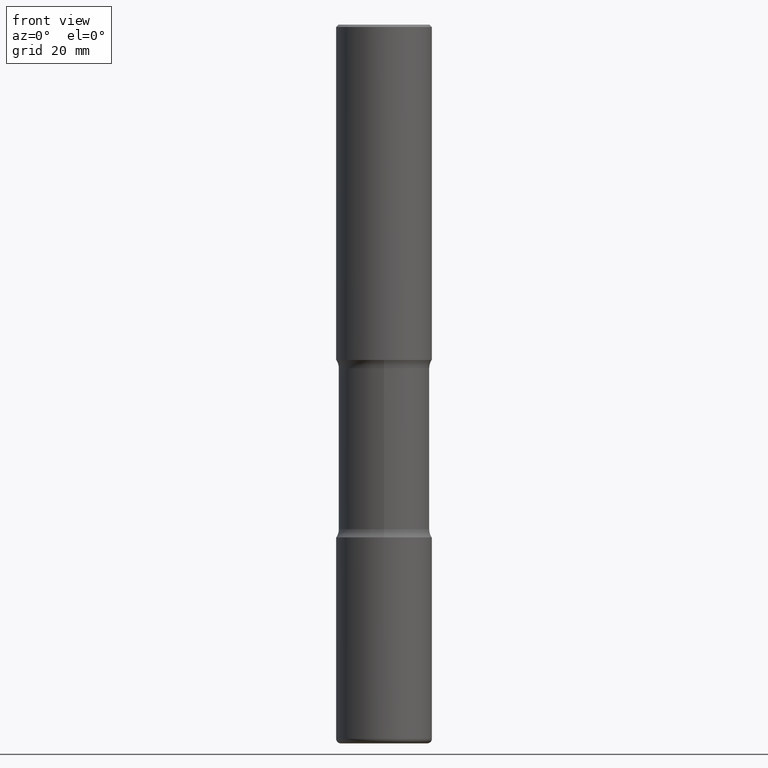
[diagram: clean part render]
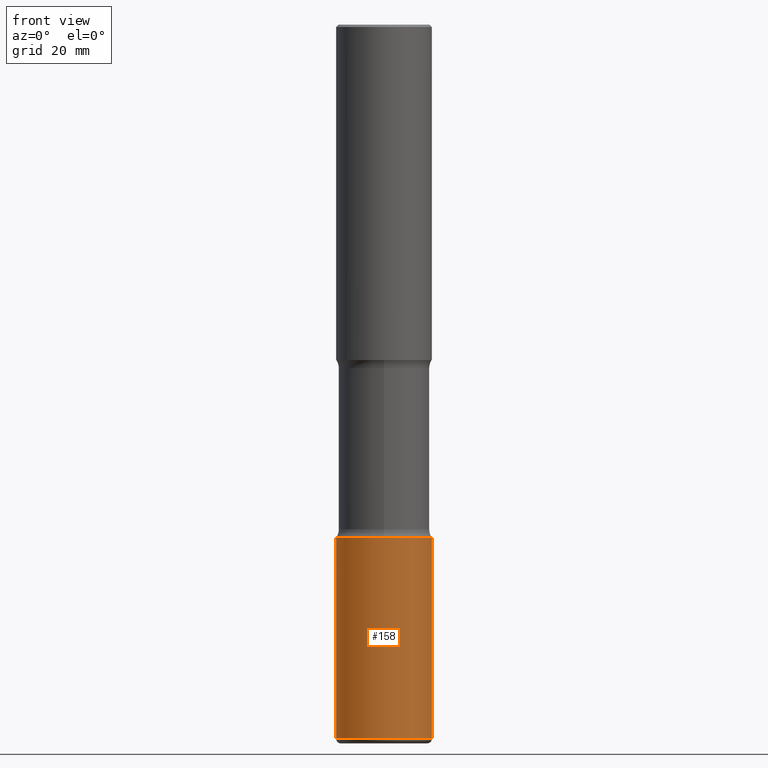
[diagram: same view with one face highlighted and labeled with its STEP entity id]
A machine part, front view. The second image highlights one B-rep face of the part: STEP entity #158.
In plain terms, the highlighted cylindrical surface (partial cylindrical patch) has radius 10 mm, axis along (-0, 0, 1).
Its self-contained STEP definition (entity closure, byte-faithful):
#5 = VECTOR ( 'NONE', #74, 39.37007874015748143 ) ;
#7 = CARTESIAN_POINT ( 'NONE',  ( 0.3937000000000002720, -1.745740669421571411E-14, -4.212599999999998346 ) ) ;
#18 = EDGE_CURVE ( 'NONE', #371, #462, #119, .T. ) ;
#21 = ORIENTED_EDGE ( 'NONE', *, *, #18, .T. ) ;
#24 = VERTEX_POINT ( 'NONE', #385 ) ;
#28 = EDGE_CURVE ( 'NONE', #371, #24, #262, .T. ) ;
#31 = ORIENTED_EDGE ( 'NONE', *, *, #370, .T. ) ;
#59 = CIRCLE ( 'NONE', #126, 0.3937000000000002720 ) ;
#74 = DIRECTION ( 'NONE',  ( -2.445468806185136877E-29, 3.491481338843145188E-15, 1.000000000000000000 ) ) ;
#78 = DIRECTION ( 'NONE',  ( 1.000000000000000000, -6.982962677686265133E-15, 0.000000000000000000 ) ) ;
#90 = FACE_OUTER_BOUND ( 'NONE', #504, .T. ) ;
#119 = CIRCLE ( 'NONE', #196, 0.3937000000000002164 ) ;
#124 = CARTESIAN_POINT ( 'NONE',  ( -0.3937000000000004385, -1.768397193110025560E-14, -5.866099999999998538 ) ) ;
#126 = AXIS2_PLACEMENT_3D ( 'NONE', #261, #559, #343 ) ;
#157 = VERTEX_POINT ( 'NONE', #7 ) ;
#158 = ADVANCED_FACE ( 'NONE', ( #90 ), #184, .T. ) ;
#171 = CARTESIAN_POINT ( 'NONE',  ( 0.3937000000000004385, -2.323057108799285912E-14, -5.866099999999998538 ) ) ;
#184 = CYLINDRICAL_SURFACE ( 'NONE', #347, 0.3937000000000002164 ) ;
#196 = AXIS2_PLACEMENT_3D ( 'NONE', #208, #259, #78 ) ;
#208 = CARTESIAN_POINT ( 'NONE',  ( 1.434536456396262699E-28, -2.048137868178777275E-14, -5.866099999999998538 ) ) ;
#213 = LINE ( 'NONE', #435, #5 ) ;
#259 = DIRECTION ( 'NONE',  ( -2.445468806185136597E-29, 3.491481338843145583E-15, 1.000000000000000000 ) ) ;
#261 = CARTESIAN_POINT ( 'NONE',  ( 1.030178189293550378E-28, -1.470821428801063089E-14, -4.212599999999998346 ) ) ;
#262 = LINE ( 'NONE', #469, #466 ) ;
#271 = DIRECTION ( 'NONE',  ( 1.000000000000000000, -6.982962677686266711E-15, 4.876176775795935793E-29 ) ) ;
#313 = EDGE_CURVE ( 'NONE', #24, #157, #59, .T. ) ;
#318 = DIRECTION ( 'NONE',  ( -2.445468806185136597E-29, 3.491481338843145583E-15, 1.000000000000000000 ) ) ;
#329 = ORIENTED_EDGE ( 'NONE', *, *, #28, .F. ) ;
#343 = DIRECTION ( 'NONE',  ( 1.000000000000000000, -6.982962677686269077E-15, 0.000000000000000000 ) ) ;
#347 = AXIS2_PLACEMENT_3D ( 'NONE', #356, #318, #271 ) ;
#356 = CARTESIAN_POINT ( 'NONE',  ( 0.000000000000000000, 0.000000000000000000, 0.000000000000000000 ) ) ;
#370 = EDGE_CURVE ( 'NONE', #462, #157, #213, .T. ) ;
#371 = VERTEX_POINT ( 'NONE', #124 ) ;
#385 = CARTESIAN_POINT ( 'NONE',  ( -0.3937000000000002720, -1.479738973421168625E-14, -4.212599999999998346 ) ) ;
#430 = DIRECTION ( 'NONE',  ( -2.445468806185136877E-29, 3.491481338843145188E-15, 1.000000000000000000 ) ) ;
#435 = CARTESIAN_POINT ( 'NONE',  ( 0.3937000000000002164, -2.749192406205084794E-15, 1.919750796630861012E-29 ) ) ;
#453 = ORIENTED_EDGE ( 'NONE', *, *, #313, .F. ) ;
#462 = VERTEX_POINT ( 'NONE', #171 ) ;
#466 = VECTOR ( 'NONE', #430, 39.37007874015748143 ) ;
#469 = CARTESIAN_POINT ( 'NONE',  ( -0.3937000000000002164, 2.797406750687515970E-15, -1.936584745033357576E-29 ) ) ;
#504 = EDGE_LOOP ( 'NONE', ( #329, #21, #31, #453 ) ) ;
#559 = DIRECTION ( 'NONE',  ( -2.445468806185136597E-29, 3.491481338843145583E-15, 1.000000000000000000 ) ) ;